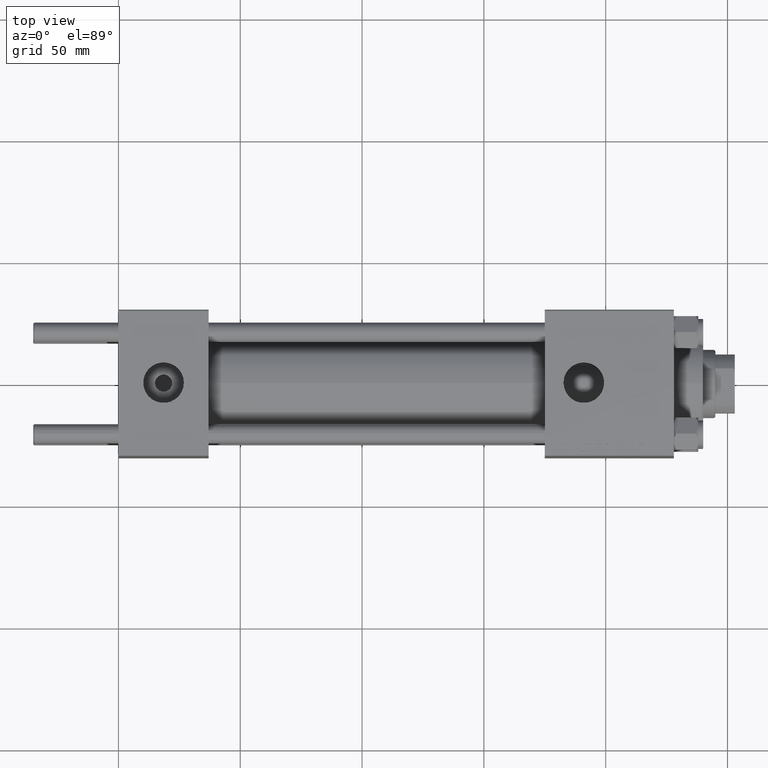
[diagram: clean part render]
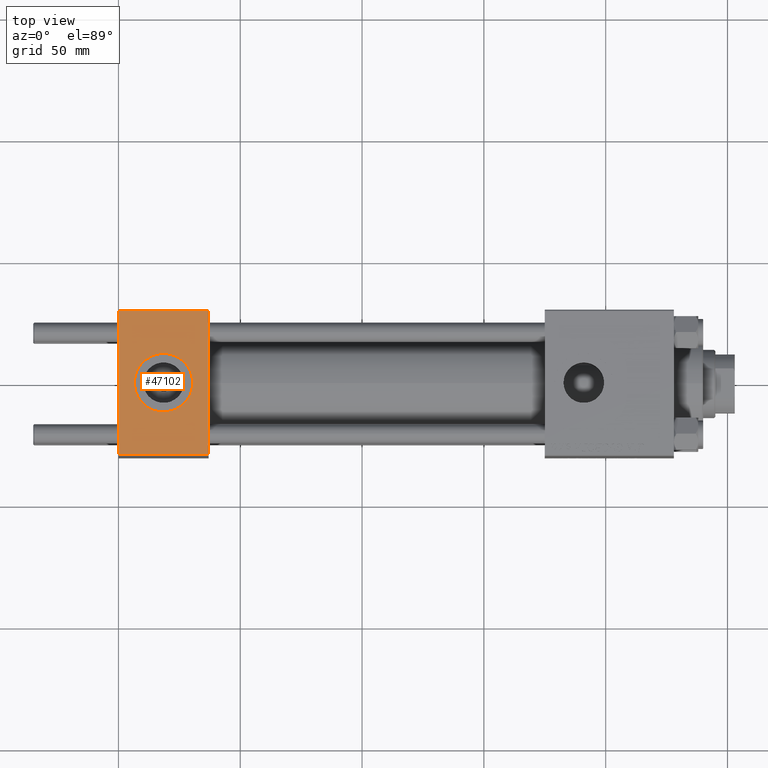
[diagram: same view with one face highlighted and labeled with its STEP entity id]
A machine part, top view. The second image highlights one B-rep face of the part: STEP entity #47102.
In plain terms, the highlighted planar face has unit normal (0, 0, -1).
Its self-contained STEP definition (entity closure, byte-faithful):
#594 = FACE_BOUND ( 'NONE', #30270, .T. ) ;
#848 = DIRECTION ( 'NONE',  ( 0.000000000000000000, 1.000000000000000000, 1.156482317317871725E-16 ) ) ;
#1449 = CARTESIAN_POINT ( 'NONE',  ( 0.000000000000000000, 29.49999999999999289, 30.00000000000000000 ) ) ;
#3961 = CARTESIAN_POINT ( 'NONE',  ( 18.50000000000000000, -3.469446951953614978E-15, 29.99999999999999645 ) ) ;
#4756 = EDGE_LOOP ( 'NONE', ( #43177, #26540, #25468, #27621 ) ) ;
#4832 = CARTESIAN_POINT ( 'NONE',  ( 30.50000000000000000, -3.469446951953614978E-15, 29.99999999999999645 ) ) ;
#6717 = ORIENTED_EDGE ( 'NONE', *, *, #14054, .F. ) ;
#8308 = LINE ( 'NONE', #45666, #18643 ) ;
#8419 = CARTESIAN_POINT ( 'NONE',  ( 37.00000000000000000, 29.49999999999999289, 30.00000000000000000 ) ) ;
#9693 = CARTESIAN_POINT ( 'NONE',  ( 18.50000000000000000, -3.469446951953614978E-15, 29.99999999999999645 ) ) ;
#9891 = LINE ( 'NONE', #16959, #35284 ) ;
#12248 = DIRECTION ( 'NONE',  ( 0.000000000000000000, 0.000000000000000000, 1.000000000000000000 ) ) ;
#14054 = EDGE_CURVE ( 'NONE', #30069, #35687, #43323, .T. ) ;
#14345 = VERTEX_POINT ( 'NONE', #8419 ) ;
#14376 = DIRECTION ( 'NONE',  ( 0.000000000000000000, -1.000000000000000000, -1.156482317317871725E-16 ) ) ;
#15151 = DIRECTION ( 'NONE',  ( 0.000000000000000000, 0.000000000000000000, 1.000000000000000000 ) ) ;
#15563 = EDGE_CURVE ( 'NONE', #35687, #30069, #21628, .T. ) ;
#16959 = CARTESIAN_POINT ( 'NONE',  ( 0.000000000000000000, 29.49999999999999289, 30.00000000000000000 ) ) ;
#17744 = CARTESIAN_POINT ( 'NONE',  ( 6.499999999999997335, -1.999870792976790833E-15, 29.99999999999999645 ) ) ;
#18643 = VECTOR ( 'NONE', #27238, 1000.000000000000000 ) ;
#20251 = FACE_OUTER_BOUND ( 'NONE', #4756, .T. ) ;
#21192 = VERTEX_POINT ( 'NONE', #30540 ) ;
#21628 = CIRCLE ( 'NONE', #36986, 12.00000000000000000 ) ;
#22227 = DIRECTION ( 'NONE',  ( 1.000000000000000000, 0.000000000000000000, 0.000000000000000000 ) ) ;
#22449 = CARTESIAN_POINT ( 'NONE',  ( 37.00000000000000000, -29.49999999999998579, 29.99999999999999289 ) ) ;
#22698 = VECTOR ( 'NONE', #14376, 1000.000000000000000 ) ;
#25468 = ORIENTED_EDGE ( 'NONE', *, *, #48015, .F. ) ;
#26540 = ORIENTED_EDGE ( 'NONE', *, *, #27683, .T. ) ;
#27238 = DIRECTION ( 'NONE',  ( 1.000000000000000000, 0.000000000000000000, 0.000000000000000000 ) ) ;
#27569 = EDGE_CURVE ( 'NONE', #40332, #21192, #45418, .T. ) ;
#27621 = ORIENTED_EDGE ( 'NONE', *, *, #46480, .T. ) ;
#27683 = EDGE_CURVE ( 'NONE', #21192, #28967, #8308, .T. ) ;
#28087 = CARTESIAN_POINT ( 'NONE',  ( 37.00000000000000000, 29.99999999999999289, 30.00000000000000000 ) ) ;
#28373 = LINE ( 'NONE', #36449, #42558 ) ;
#28967 = VERTEX_POINT ( 'NONE', #22449 ) ;
#29371 = DIRECTION ( 'NONE',  ( 0.000000000000000000, -1.000000000000000000, -1.156482317317871725E-16 ) ) ;
#30069 = VERTEX_POINT ( 'NONE', #4832 ) ;
#30270 = EDGE_LOOP ( 'NONE', ( #6717, #46742 ) ) ;
#30540 = CARTESIAN_POINT ( 'NONE',  ( 0.000000000000000000, -29.49999999999998579, 29.99999999999999289 ) ) ;
#33657 = AXIS2_PLACEMENT_3D ( 'NONE', #3961, #12248, #47068 ) ;
#35284 = VECTOR ( 'NONE', #40432, 1000.000000000000000 ) ;
#35687 = VERTEX_POINT ( 'NONE', #17744 ) ;
#36449 = CARTESIAN_POINT ( 'NONE',  ( 37.00000000000000000, 29.99999999999999289, 30.00000000000000000 ) ) ;
#36986 = AXIS2_PLACEMENT_3D ( 'NONE', #9693, #15151, #22227 ) ;
#40332 = VERTEX_POINT ( 'NONE', #1449 ) ;
#40432 = DIRECTION ( 'NONE',  ( -1.000000000000000000, 0.000000000000000000, 0.000000000000000000 ) ) ;
#42482 = DIRECTION ( 'NONE',  ( 0.000000000000000000, 1.156482317317871725E-16, -1.000000000000000000 ) ) ;
#42558 = VECTOR ( 'NONE', #29371, 1000.000000000000000 ) ;
#43177 = ORIENTED_EDGE ( 'NONE', *, *, #27569, .T. ) ;
#43323 = CIRCLE ( 'NONE', #33657, 12.00000000000000000 ) ;
#43354 = AXIS2_PLACEMENT_3D ( 'NONE', #28087, #42482, #848 ) ;
#45418 = LINE ( 'NONE', #48692, #22698 ) ;
#45666 = CARTESIAN_POINT ( 'NONE',  ( 37.00000000000000000, -29.50000000000000000, 29.99999999999999289 ) ) ;
#46480 = EDGE_CURVE ( 'NONE', #14345, #40332, #9891, .T. ) ;
#46742 = ORIENTED_EDGE ( 'NONE', *, *, #15563, .F. ) ;
#46750 = PLANE ( 'NONE',  #43354 ) ;
#47068 = DIRECTION ( 'NONE',  ( 1.000000000000000000, 0.000000000000000000, 0.000000000000000000 ) ) ;
#47102 = ADVANCED_FACE ( 'NONE', ( #594, #20251 ), #46750, .F. ) ;
#48015 = EDGE_CURVE ( 'NONE', #14345, #28967, #28373, .T. ) ;
#48692 = CARTESIAN_POINT ( 'NONE',  ( 0.000000000000000000, 29.99999999999999289, 30.00000000000000000 ) ) ;